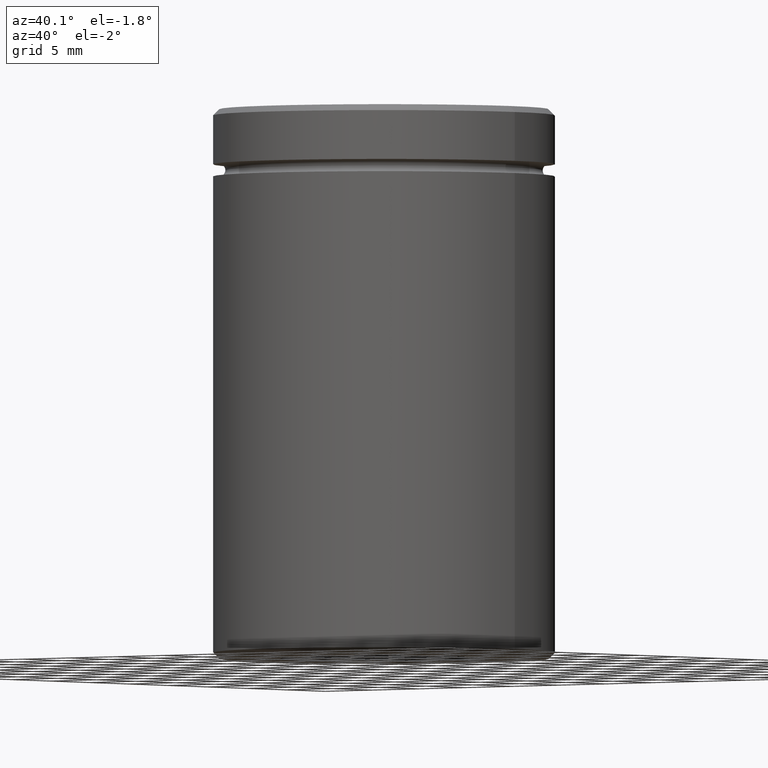
[diagram: clean part render]
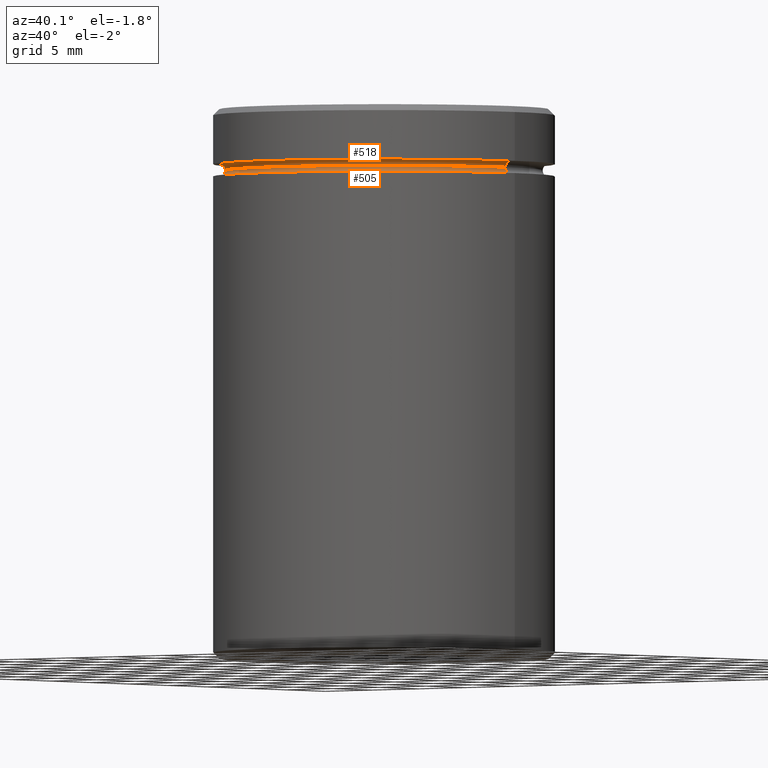
[diagram: same view with one multi-face feature highlighted, each face labeled with its STEP entity id]
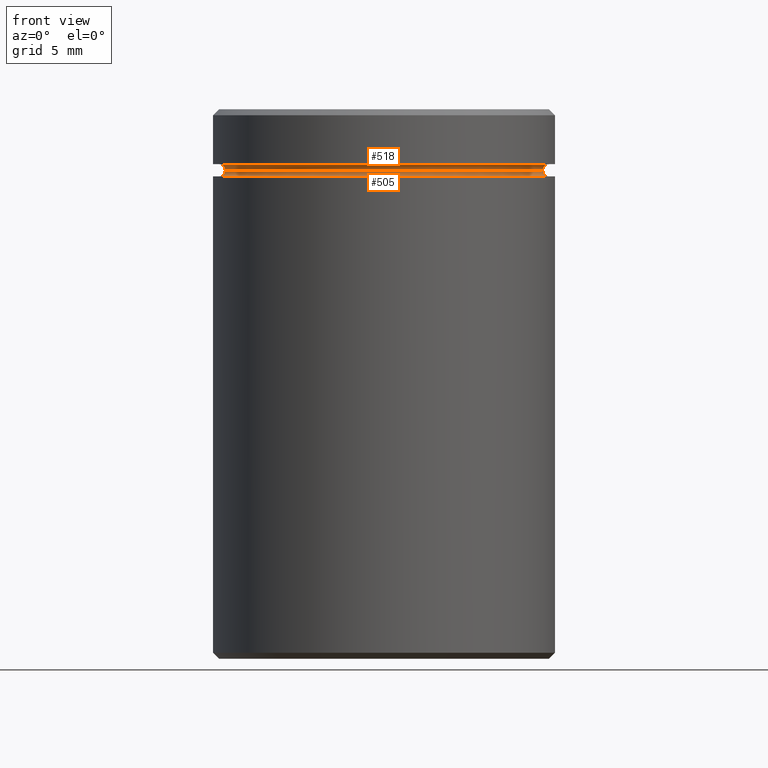
[diagram: same view with one multi-face feature highlighted, each face labeled with its STEP entity id]
A machine part, auxiliary view. The highlighted faces form ONE feature: a constant-radius fillet chain: 2 tangent blend faces with common blend radius 0.5 mm. The faces share edges in the B-rep.
A second angle (front view) of the same feature is appended — it is thin or edge-on in the first view.
Their STEP definitions:
[1] entity #505 (Torus):
#2 = TOROIDAL_SURFACE ( 'NONE', #494, 13.50000000000000178, 0.5000000000000000000 ) ;
#7 = DIRECTION ( 'NONE',  ( 1.000000000000000000, 0.000000000000000000, 0.000000000000000000 ) ) ;
#14 = EDGE_CURVE ( 'NONE', #323, #557, #241, .T. ) ;
#20 = ORIENTED_EDGE ( 'NONE', *, *, #73, .F. ) ;
#55 = CARTESIAN_POINT ( 'NONE',  ( 0.000000000000000000, 0.000000000000000000, -5.500000000000000000 ) ) ;
#57 = FACE_OUTER_BOUND ( 'NONE', #174, .T. ) ;
#73 = EDGE_CURVE ( 'NONE', #323, #114, #523, .T. ) ;
#87 = EDGE_CURVE ( 'NONE', #411, #557, #368, .T. ) ;
#89 = AXIS2_PLACEMENT_3D ( 'NONE', #55, #487, #7 ) ;
#95 = CARTESIAN_POINT ( 'NONE',  ( 0.000000000000000000, 0.000000000000000000, -4.999999999999999112 ) ) ;
#101 = DIRECTION ( 'NONE',  ( 0.000000000000000000, -1.000000000000000000, 0.000000000000000000 ) ) ;
#114 = VERTEX_POINT ( 'NONE', #225 ) ;
#130 = DIRECTION ( 'NONE',  ( 1.000000000000000000, 0.000000000000000000, 0.000000000000000000 ) ) ;
#165 = DIRECTION ( 'NONE',  ( -1.000000000000000000, 1.224646799147353454E-16, 0.000000000000000000 ) ) ;
#172 = EDGE_CURVE ( 'NONE', #114, #411, #208, .T. ) ;
#174 = EDGE_LOOP ( 'NONE', ( #20, #194, #210, #537 ) ) ;
#187 = DIRECTION ( 'NONE',  ( 0.000000000000000000, 0.000000000000000000, -1.000000000000000000 ) ) ;
#192 = DIRECTION ( 'NONE',  ( -0.000000000000000000, -0.000000000000000000, 1.000000000000000000 ) ) ;
#194 = ORIENTED_EDGE ( 'NONE', *, *, #14, .T. ) ;
#208 = CIRCLE ( 'NONE', #274, 0.5000000000000004441 ) ;
#210 = ORIENTED_EDGE ( 'NONE', *, *, #87, .F. ) ;
#225 = CARTESIAN_POINT ( 'NONE',  ( 13.00000000000000178, 0.000000000000000000, -4.999999999999999112 ) ) ;
#241 = CIRCLE ( 'NONE', #492, 0.5000000000000004441 ) ;
#258 = CARTESIAN_POINT ( 'NONE',  ( 13.50000000000000178, 0.000000000000000000, -5.500000000000000000 ) ) ;
#270 = CARTESIAN_POINT ( 'NONE',  ( 13.50000000000000178, 0.000000000000000000, -4.999999999999999112 ) ) ;
#274 = AXIS2_PLACEMENT_3D ( 'NONE', #270, #101, #187 ) ;
#285 = AXIS2_PLACEMENT_3D ( 'NONE', #95, #192, #130 ) ;
#323 = VERTEX_POINT ( 'NONE', #461 ) ;
#355 = CARTESIAN_POINT ( 'NONE',  ( -13.50000000000000178, 1.653273178848927064E-15, -5.500000000000000000 ) ) ;
#368 = CIRCLE ( 'NONE', #89, 13.50000000000000178 ) ;
#378 = DIRECTION ( 'NONE',  ( 1.224646799147353207E-16, 1.000000000000000000, 0.000000000000000000 ) ) ;
#391 = CARTESIAN_POINT ( 'NONE',  ( 0.000000000000000000, 0.000000000000000000, -4.999999999999999112 ) ) ;
#411 = VERTEX_POINT ( 'NONE', #258 ) ;
#441 = DIRECTION ( 'NONE',  ( -0.000000000000000000, -0.000000000000000000, 1.000000000000000000 ) ) ;
#452 = DIRECTION ( 'NONE',  ( 1.000000000000000000, 0.000000000000000000, 0.000000000000000000 ) ) ;
#461 = CARTESIAN_POINT ( 'NONE',  ( -13.00000000000000178, 1.622657008870243277E-15, -4.999999999999999112 ) ) ;
#487 = DIRECTION ( 'NONE',  ( 0.000000000000000000, 0.000000000000000000, -1.000000000000000000 ) ) ;
#492 = AXIS2_PLACEMENT_3D ( 'NONE', #521, #378, #165 ) ;
#494 = AXIS2_PLACEMENT_3D ( 'NONE', #391, #441, #452 ) ;
#505 = ADVANCED_FACE ( 'NONE', ( #57 ), #2, .F. ) ;
#521 = CARTESIAN_POINT ( 'NONE',  ( -13.50000000000000178, 1.653273178848927064E-15, -4.999999999999999112 ) ) ;
#523 = CIRCLE ( 'NONE', #285, 13.00000000000000178 ) ;
#537 = ORIENTED_EDGE ( 'NONE', *, *, #172, .F. ) ;
#557 = VERTEX_POINT ( 'NONE', #355 ) ;
[2] entity #518 (Torus):
#6 = EDGE_CURVE ( 'NONE', #114, #529, #120, .T. ) ;
#12 = CARTESIAN_POINT ( 'NONE',  ( 0.000000000000000000, 0.000000000000000000, -4.500000000000000888 ) ) ;
#52 = DIRECTION ( 'NONE',  ( -1.000000000000000000, 0.000000000000000000, 0.000000000000000000 ) ) ;
#73 = EDGE_CURVE ( 'NONE', #323, #114, #523, .T. ) ;
#75 = ORIENTED_EDGE ( 'NONE', *, *, #198, .F. ) ;
#76 = CARTESIAN_POINT ( 'NONE',  ( -13.50000000000000178, 0.000000000000000000, -5.000000000000000888 ) ) ;
#90 = CARTESIAN_POINT ( 'NONE',  ( -13.50000000000000178, 0.000000000000000000, -4.500000000000000888 ) ) ;
#95 = CARTESIAN_POINT ( 'NONE',  ( 0.000000000000000000, 0.000000000000000000, -4.999999999999999112 ) ) ;
#97 = ORIENTED_EDGE ( 'NONE', *, *, #379, .F. ) ;
#113 = EDGE_LOOP ( 'NONE', ( #299, #392, #75, #97 ) ) ;
#114 = VERTEX_POINT ( 'NONE', #225 ) ;
#120 = CIRCLE ( 'NONE', #330, 0.5000000000000004441 ) ;
#121 = TOROIDAL_SURFACE ( 'NONE', #377, 13.50000000000000178, 0.5000000000000000000 ) ;
#129 = DIRECTION ( 'NONE',  ( -1.000000000000000000, -1.224646799147353454E-16, 0.000000000000000000 ) ) ;
#130 = DIRECTION ( 'NONE',  ( 1.000000000000000000, 0.000000000000000000, 0.000000000000000000 ) ) ;
#186 = AXIS2_PLACEMENT_3D ( 'NONE', #12, #446, #52 ) ;
#192 = DIRECTION ( 'NONE',  ( -0.000000000000000000, -0.000000000000000000, 1.000000000000000000 ) ) ;
#198 = EDGE_CURVE ( 'NONE', #472, #529, #428, .T. ) ;
#203 = CARTESIAN_POINT ( 'NONE',  ( 13.50000000000000178, 1.653273178848927064E-15, -5.000000000000000888 ) ) ;
#225 = CARTESIAN_POINT ( 'NONE',  ( 13.00000000000000178, 0.000000000000000000, -4.999999999999999112 ) ) ;
#233 = CARTESIAN_POINT ( 'NONE',  ( 0.000000000000000000, 0.000000000000000000, -5.000000000000000888 ) ) ;
#268 = FACE_OUTER_BOUND ( 'NONE', #113, .T. ) ;
#285 = AXIS2_PLACEMENT_3D ( 'NONE', #95, #192, #130 ) ;
#299 = ORIENTED_EDGE ( 'NONE', *, *, #73, .T. ) ;
#323 = VERTEX_POINT ( 'NONE', #461 ) ;
#330 = AXIS2_PLACEMENT_3D ( 'NONE', #203, #550, #129 ) ;
#341 = DIRECTION ( 'NONE',  ( -0.000000000000000000, -1.000000000000000000, -0.000000000000000000 ) ) ;
#352 = CARTESIAN_POINT ( 'NONE',  ( 13.50000000000000178, 1.653273178848927064E-15, -4.500000000000000888 ) ) ;
#377 = AXIS2_PLACEMENT_3D ( 'NONE', #233, #528, #444 ) ;
#379 = EDGE_CURVE ( 'NONE', #323, #472, #430, .T. ) ;
#392 = ORIENTED_EDGE ( 'NONE', *, *, #6, .T. ) ;
#428 = CIRCLE ( 'NONE', #186, 13.50000000000000178 ) ;
#430 = CIRCLE ( 'NONE', #437, 0.5000000000000004441 ) ;
#437 = AXIS2_PLACEMENT_3D ( 'NONE', #76, #341, #524 ) ;
#444 = DIRECTION ( 'NONE',  ( -1.000000000000000000, 0.000000000000000000, 0.000000000000000000 ) ) ;
#446 = DIRECTION ( 'NONE',  ( -0.000000000000000000, -0.000000000000000000, 1.000000000000000000 ) ) ;
#461 = CARTESIAN_POINT ( 'NONE',  ( -13.00000000000000178, 1.622657008870243277E-15, -4.999999999999999112 ) ) ;
#472 = VERTEX_POINT ( 'NONE', #90 ) ;
#518 = ADVANCED_FACE ( 'NONE', ( #268 ), #121, .F. ) ;
#523 = CIRCLE ( 'NONE', #285, 13.00000000000000178 ) ;
#524 = DIRECTION ( 'NONE',  ( 0.000000000000000000, 0.000000000000000000, -1.000000000000000000 ) ) ;
#528 = DIRECTION ( 'NONE',  ( 0.000000000000000000, 0.000000000000000000, -1.000000000000000000 ) ) ;
#529 = VERTEX_POINT ( 'NONE', #352 ) ;
#550 = DIRECTION ( 'NONE',  ( -1.224646799147353207E-16, 1.000000000000000000, 0.000000000000000000 ) ) ;